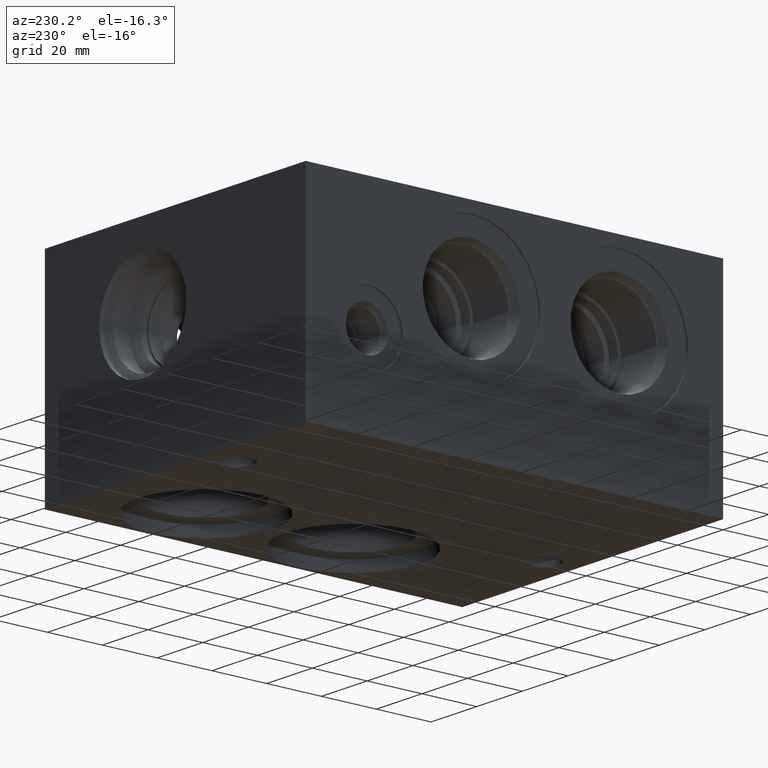
[diagram: clean part render]
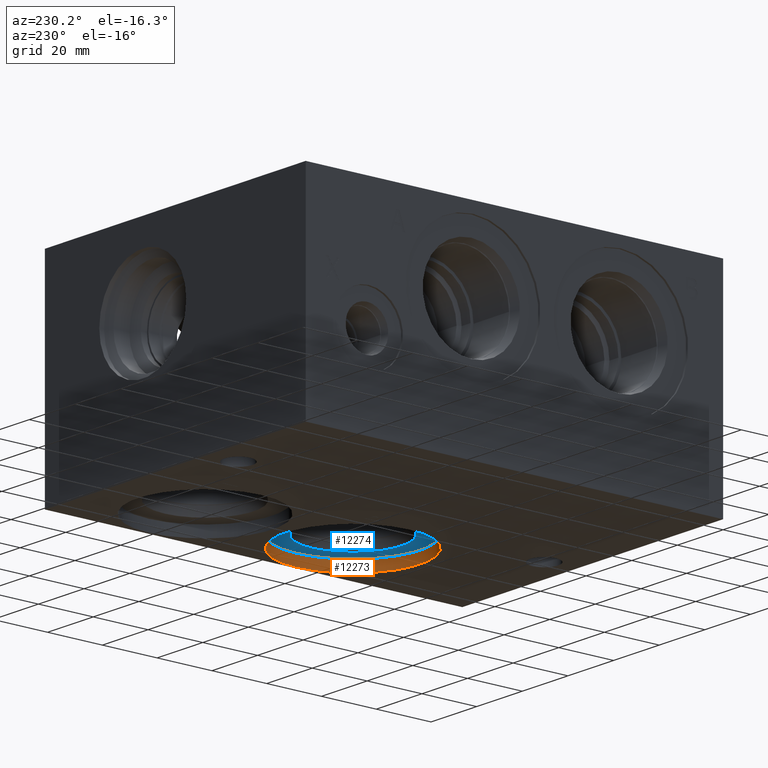
[diagram: same view with the hole feature highlighted: cylindrical wall and planar end face, labeled with their STEP entity ids]
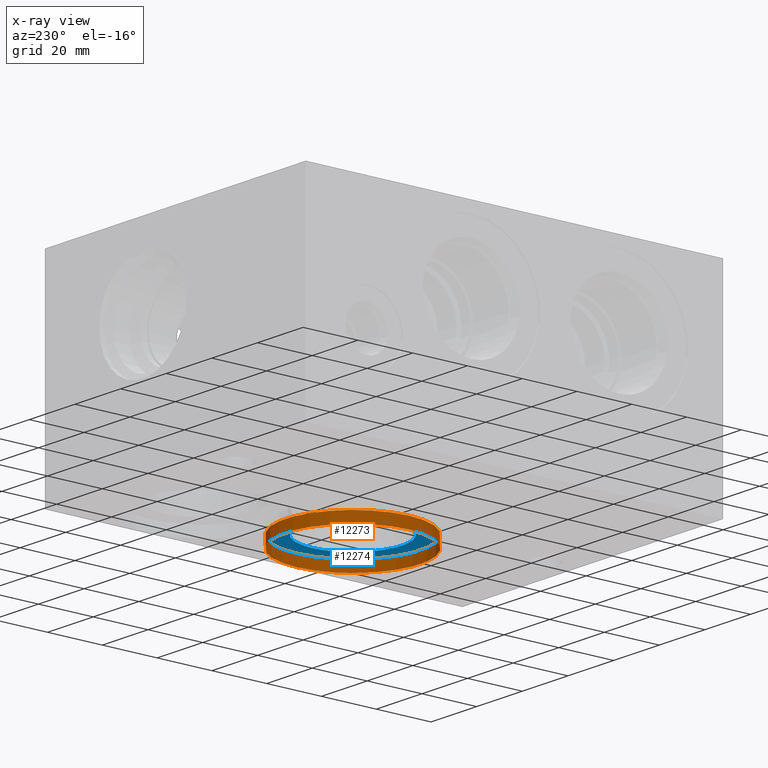
[diagram: x-ray of the same camera — body ghosted, the hole faces saturated]
A machine part, auxiliary view. The highlighted faces form one hole feature of diameter 49.1236 mm: the cylindrical wall (entity #12273, orange) and its adjacent planar end face (entity #12274, blue) — they share a circular edge in the B-rep.
The next image is the same camera in x-ray (body ghosted, the hole faces saturated) — the bore reads through the body.
Wall:
#72=CYLINDRICAL_SURFACE('',#12779,24.5618);
#148=CIRCLE('',#12458,24.5618);
#149=CIRCLE('',#12459,24.5618);
#162=CIRCLE('',#12780,24.5618);
#163=CIRCLE('',#12781,24.5618);
#1343=FACE_OUTER_BOUND('',#2031,.T.);
#2031=EDGE_LOOP('',(#10319,#10320,#10321,#10322,#10323,#10324));
#3221=LINE('',#20578,#4326);
#4326=VECTOR('',#14857,24.5618);
#4828=VERTEX_POINT('',#16017);
#4829=VERTEX_POINT('',#16018);
#5680=VERTEX_POINT('',#20577);
#5681=VERTEX_POINT('',#20579);
#6030=EDGE_CURVE('',#4828,#4829,#148,.T.);
#6031=EDGE_CURVE('',#4829,#4828,#149,.T.);
#7302=EDGE_CURVE('',#4829,#5680,#3221,.T.);
#7303=EDGE_CURVE('',#5680,#5681,#162,.T.);
#7304=EDGE_CURVE('',#5681,#5680,#163,.T.);
#10319=ORIENTED_EDGE('',*,*,#6030,.F.);
#10320=ORIENTED_EDGE('',*,*,#6031,.F.);
#10321=ORIENTED_EDGE('',*,*,#7302,.T.);
#10322=ORIENTED_EDGE('',*,*,#7303,.T.);
#10323=ORIENTED_EDGE('',*,*,#7304,.T.);
#10324=ORIENTED_EDGE('',*,*,#7302,.F.);
#12273=ADVANCED_FACE('',(#1343),#72,.F.);
#12458=AXIS2_PLACEMENT_3D('',#16019,#13259,#13260);
#12459=AXIS2_PLACEMENT_3D('',#16020,#13261,#13262);
#12779=AXIS2_PLACEMENT_3D('',#20576,#14855,#14856);
#12780=AXIS2_PLACEMENT_3D('',#20580,#14858,#14859);
#12781=AXIS2_PLACEMENT_3D('',#20581,#14860,#14861);
#13259=DIRECTION('center_axis',(0.,0.,1.));
#13260=DIRECTION('ref_axis',(1.,0.,0.));
#13261=DIRECTION('center_axis',(0.,0.,1.));
#13262=DIRECTION('ref_axis',(1.,0.,0.));
#14855=DIRECTION('center_axis',(0.,0.,1.));
#14856=DIRECTION('ref_axis',(1.,0.,0.));
#14857=DIRECTION('',(0.,0.,1.));
#14858=DIRECTION('center_axis',(0.,0.,1.));
#14859=DIRECTION('ref_axis',(1.,0.,0.));
#14860=DIRECTION('center_axis',(0.,0.,1.));
#14861=DIRECTION('ref_axis',(1.,0.,0.));
#16017=CARTESIAN_POINT('',(113.4618,61.1124,0.));
#16018=CARTESIAN_POINT('',(64.3382,61.1124,0.));
#16019=CARTESIAN_POINT('Origin',(88.9,61.1124,0.));
#16020=CARTESIAN_POINT('Origin',(88.9,61.1124,0.));
#20576=CARTESIAN_POINT('Origin',(88.9,61.1124,2.032));
#20577=CARTESIAN_POINT('',(64.3382,61.1124,4.064));
#20578=CARTESIAN_POINT('',(64.3382,61.1124,2.032));
#20579=CARTESIAN_POINT('',(113.4618,61.1124,4.064));
#20580=CARTESIAN_POINT('Origin',(88.9,61.1124,4.064));
#20581=CARTESIAN_POINT('Origin',(88.9,61.1124,4.064));
End face:
#162=CIRCLE('',#12780,24.5618);
#163=CIRCLE('',#12781,24.5618);
#164=CIRCLE('',#12783,17.7546);
#165=CIRCLE('',#12784,17.7546);
#473=FACE_BOUND('',#2033,.T.);
#833=PLANE('',#12782);
#1344=FACE_OUTER_BOUND('',#2032,.T.);
#2032=EDGE_LOOP('',(#10325,#10326));
#2033=EDGE_LOOP('',(#10327,#10328));
#5680=VERTEX_POINT('',#20577);
#5681=VERTEX_POINT('',#20579);
#5682=VERTEX_POINT('',#20583);
#5683=VERTEX_POINT('',#20584);
#7303=EDGE_CURVE('',#5680,#5681,#162,.T.);
#7304=EDGE_CURVE('',#5681,#5680,#163,.T.);
#7305=EDGE_CURVE('',#5682,#5683,#164,.T.);
#7306=EDGE_CURVE('',#5683,#5682,#165,.T.);
#10325=ORIENTED_EDGE('',*,*,#7304,.F.);
#10326=ORIENTED_EDGE('',*,*,#7303,.F.);
#10327=ORIENTED_EDGE('',*,*,#7305,.T.);
#10328=ORIENTED_EDGE('',*,*,#7306,.T.);
#12274=ADVANCED_FACE('',(#1344,#473),#833,.F.);
#12780=AXIS2_PLACEMENT_3D('',#20580,#14858,#14859);
#12781=AXIS2_PLACEMENT_3D('',#20581,#14860,#14861);
#12782=AXIS2_PLACEMENT_3D('',#20582,#14862,#14863);
#12783=AXIS2_PLACEMENT_3D('',#20585,#14864,#14865);
#12784=AXIS2_PLACEMENT_3D('',#20586,#14866,#14867);
#14858=DIRECTION('center_axis',(0.,0.,1.));
#14859=DIRECTION('ref_axis',(1.,0.,0.));
#14860=DIRECTION('center_axis',(0.,0.,1.));
#14861=DIRECTION('ref_axis',(1.,0.,0.));
#14862=DIRECTION('center_axis',(0.,0.,1.));
#14863=DIRECTION('ref_axis',(1.,0.,0.));
#14864=DIRECTION('center_axis',(0.,0.,1.));
#14865=DIRECTION('ref_axis',(1.,0.,0.));
#14866=DIRECTION('center_axis',(0.,0.,1.));
#14867=DIRECTION('ref_axis',(1.,0.,0.));
#20577=CARTESIAN_POINT('',(64.3382,61.1124,4.064));
#20579=CARTESIAN_POINT('',(113.4618,61.1124,4.064));
#20580=CARTESIAN_POINT('Origin',(88.9,61.1124,4.064));
#20581=CARTESIAN_POINT('Origin',(88.9,61.1124,4.064));
#20582=CARTESIAN_POINT('Origin',(106.6546,61.1124,4.064));
#20583=CARTESIAN_POINT('',(106.6546,61.1124,4.064));
#20584=CARTESIAN_POINT('',(71.1454,61.1124,4.064));
#20585=CARTESIAN_POINT('Origin',(88.9,61.1124,4.064));
#20586=CARTESIAN_POINT('Origin',(88.9,61.1124,4.064));